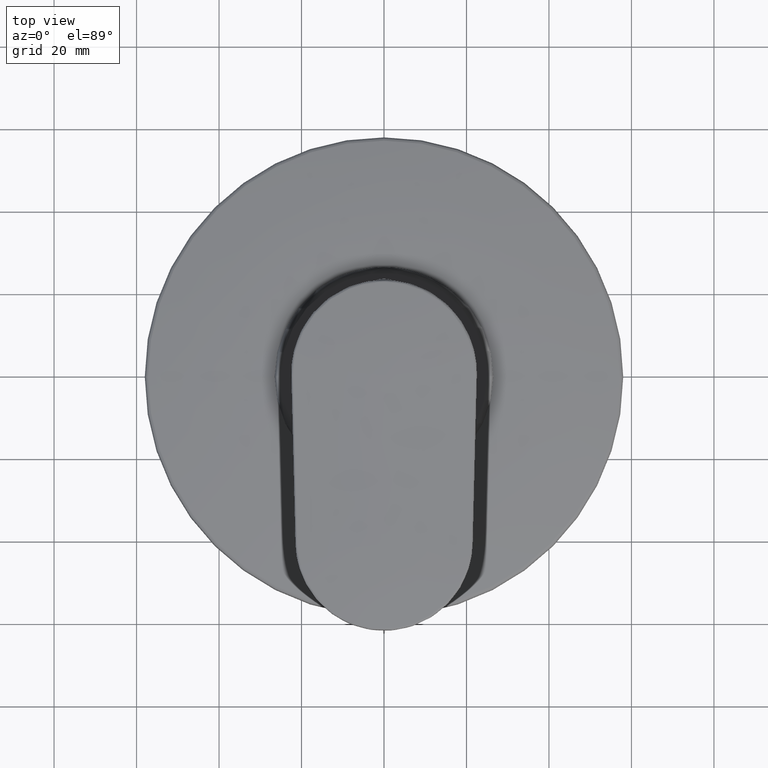
[diagram: clean part render]
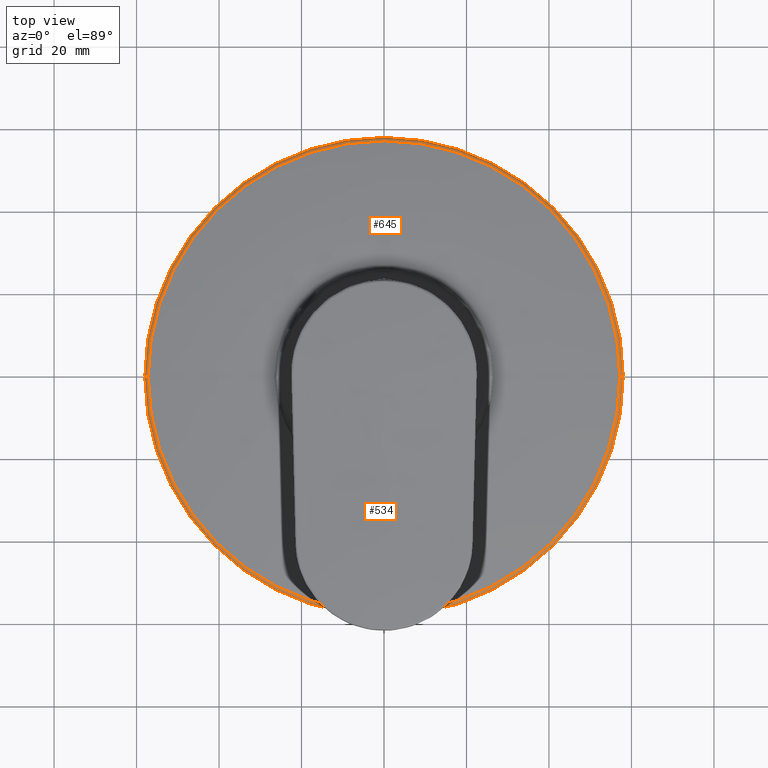
[diagram: same view with one multi-face feature highlighted, each face labeled with its STEP entity id]
A machine part, top view. The highlighted faces form ONE feature: a constant-radius fillet chain: 2 tangent blend faces with common blend radius 1 mm. The faces share edges in the B-rep.
Their STEP definitions:
[1] entity #534 (Torus):
#29=CARTESIAN_POINT('',(0.E0,0.E0,4.516472867169E1));
#30=DIRECTION('',(0.E0,0.E0,1.E0));
#31=DIRECTION('',(-1.E0,0.E0,0.E0));
#32=AXIS2_PLACEMENT_3D('',#29,#30,#31);
#47=CARTESIAN_POINT('',(-5.7E1,6.487088654036E-12,4.516472867169E1));
#48=DIRECTION('',(-1.138082683649E-13,-1.E0,0.E0));
#49=DIRECTION('',(-1.758241758147E-1,2.000873988981E-14,9.844215861099E-1));
#50=AXIS2_PLACEMENT_3D('',#47,#48,#49);
#52=CARTESIAN_POINT('',(0.E0,0.E0,4.614915025780E1));
#53=DIRECTION('',(0.E0,0.E0,1.E0));
#54=DIRECTION('',(-1.E0,0.E0,0.E0));
#55=AXIS2_PLACEMENT_3D('',#52,#53,#54);
#72=CARTESIAN_POINT('',(5.7E1,-6.486589033675E-12,4.516472867169E1));
#73=DIRECTION('',(1.137995947476E-13,1.E0,0.E0));
#74=DIRECTION('',(1.758241758148E-1,-2.000932856217E-14,9.844215861099E-1));
#75=AXIS2_PLACEMENT_3D('',#72,#73,#74);
#469=CARTESIAN_POINT('',(-5.717582417582E1,0.E0,4.614915025780E1));
#470=CARTESIAN_POINT('',(5.717582417582E1,-1.400402801311E-14,
4.614915025780E1));
#471=VERTEX_POINT('',#469);
#472=VERTEX_POINT('',#470);
#473=CARTESIAN_POINT('',(-5.8E1,0.E0,4.516472867169E1));
#474=CARTESIAN_POINT('',(5.8E1,-1.420589287011E-14,4.516472867169E1));
#475=VERTEX_POINT('',#473);
#476=VERTEX_POINT('',#474);
#520=CARTESIAN_POINT('',(0.E0,0.E0,4.516472867169E1));
#521=DIRECTION('',(0.E0,0.E0,-1.E0));
#522=DIRECTION('',(-9.999829214734E-1,5.844378633632E-3,0.E0));
#523=AXIS2_PLACEMENT_3D('',#520,#521,#522);
#524=TOROIDAL_SURFACE('',#523,5.7E1,1.E0);
#526=ORIENTED_EDGE('',*,*,#525,.T.);
#528=ORIENTED_EDGE('',*,*,#527,.T.);
#529=ORIENTED_EDGE('',*,*,#502,.F.);
#531=ORIENTED_EDGE('',*,*,#530,.F.);
#532=EDGE_LOOP('',(#526,#528,#529,#531));
#533=FACE_OUTER_BOUND('',#532,.F.);
#534=ADVANCED_FACE('',(#533),#524,.T.);
#33=CIRCLE('',#32,5.8E1);
#51=CIRCLE('',#50,1.E0);
#56=CIRCLE('',#55,5.717582417582E1);
#76=CIRCLE('',#75,1.E0);
#502=EDGE_CURVE('',#475,#476,#33,.T.);
#525=EDGE_CURVE('',#471,#472,#56,.T.);
#527=EDGE_CURVE('',#472,#476,#76,.T.);
#530=EDGE_CURVE('',#471,#475,#51,.T.);
[2] entity #645 (Torus):
#47=CARTESIAN_POINT('',(-5.7E1,6.487088654036E-12,4.516472867169E1));
#48=DIRECTION('',(-1.138082683649E-13,-1.E0,0.E0));
#49=DIRECTION('',(-1.758241758147E-1,2.000873988981E-14,9.844215861099E-1));
#50=AXIS2_PLACEMENT_3D('',#47,#48,#49);
#67=CARTESIAN_POINT('',(0.E0,0.E0,4.614915025780E1));
#68=DIRECTION('',(0.E0,0.E0,1.E0));
#69=DIRECTION('',(1.E0,0.E0,0.E0));
#70=AXIS2_PLACEMENT_3D('',#67,#68,#69);
#72=CARTESIAN_POINT('',(5.7E1,-6.486589033675E-12,4.516472867169E1));
#73=DIRECTION('',(1.137995947476E-13,1.E0,0.E0));
#74=DIRECTION('',(1.758241758148E-1,-2.000932856217E-14,9.844215861099E-1));
#75=AXIS2_PLACEMENT_3D('',#72,#73,#74);
#77=CARTESIAN_POINT('',(0.E0,0.E0,4.516472867169E1));
#78=DIRECTION('',(0.E0,0.E0,1.E0));
#79=DIRECTION('',(1.E0,0.E0,0.E0));
#80=AXIS2_PLACEMENT_3D('',#77,#78,#79);
#469=CARTESIAN_POINT('',(-5.717582417582E1,0.E0,4.614915025780E1));
#470=CARTESIAN_POINT('',(5.717582417582E1,-1.400402801311E-14,
4.614915025780E1));
#471=VERTEX_POINT('',#469);
#472=VERTEX_POINT('',#470);
#473=CARTESIAN_POINT('',(-5.8E1,0.E0,4.516472867169E1));
#474=CARTESIAN_POINT('',(5.8E1,-1.420589287011E-14,4.516472867169E1));
#475=VERTEX_POINT('',#473);
#476=VERTEX_POINT('',#474);
#633=CARTESIAN_POINT('',(0.E0,0.E0,4.516472867169E1));
#634=DIRECTION('',(0.E0,0.E0,-1.E0));
#635=DIRECTION('',(9.999829214734E-1,-5.844378633632E-3,0.E0));
#636=AXIS2_PLACEMENT_3D('',#633,#634,#635);
#637=TOROIDAL_SURFACE('',#636,5.7E1,1.E0);
#638=ORIENTED_EDGE('',*,*,#617,.T.);
#639=ORIENTED_EDGE('',*,*,#530,.T.);
#641=ORIENTED_EDGE('',*,*,#640,.F.);
#642=ORIENTED_EDGE('',*,*,#527,.F.);
#643=EDGE_LOOP('',(#638,#639,#641,#642));
#644=FACE_OUTER_BOUND('',#643,.F.);
#645=ADVANCED_FACE('',(#644),#637,.T.);
#51=CIRCLE('',#50,1.E0);
#71=CIRCLE('',#70,5.717582417582E1);
#76=CIRCLE('',#75,1.E0);
#81=CIRCLE('',#80,5.8E1);
#527=EDGE_CURVE('',#472,#476,#76,.T.);
#530=EDGE_CURVE('',#471,#475,#51,.T.);
#617=EDGE_CURVE('',#472,#471,#71,.T.);
#640=EDGE_CURVE('',#476,#475,#81,.T.);